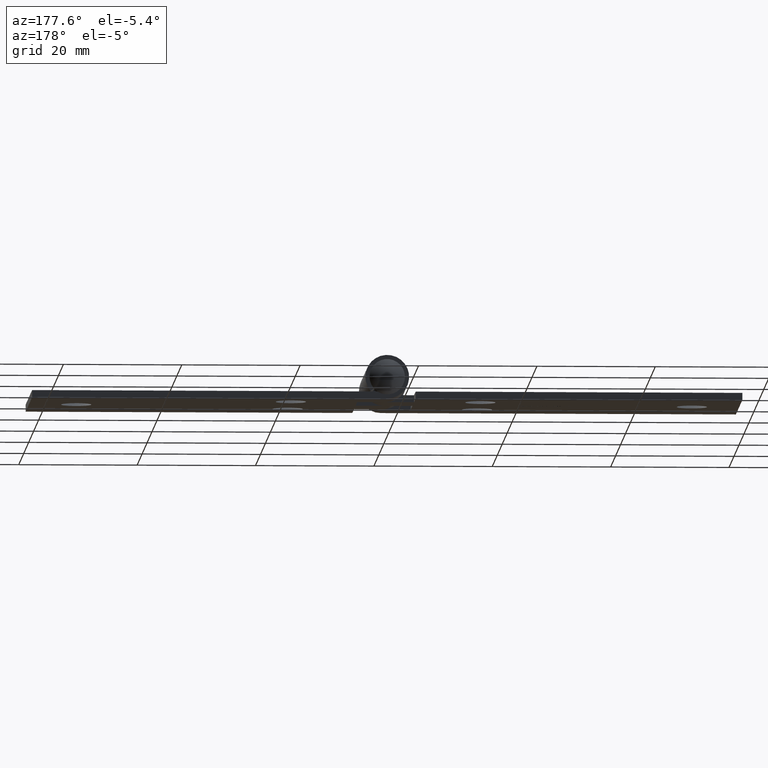
[diagram: clean part render]
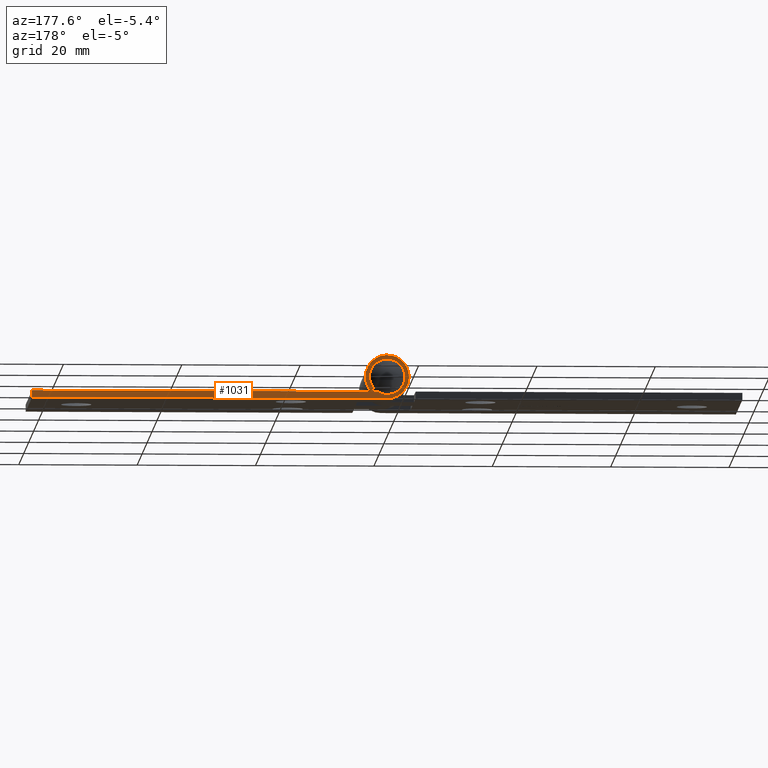
[diagram: same view with one face highlighted and labeled with its STEP entity id]
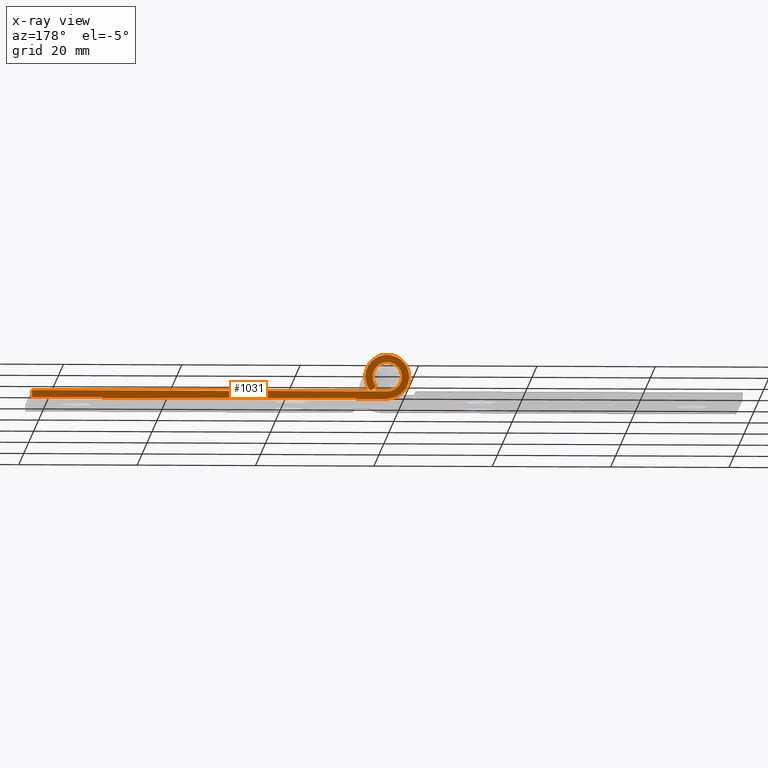
[diagram: x-ray of the same camera — body ghosted, the highlighted face saturated]
A machine part, auxiliary view. The second image highlights one B-rep face of the part: STEP entity #1031.
The next image is the same camera in x-ray: the body ghosted, the highlighted face saturated — about 0% of this face is hidden behind the body in this view.
In plain terms, the highlighted planar face has unit normal (0, 1, 0).
Its self-contained STEP definition (entity closure, byte-faithful):
#105 = CARTESIAN_POINT ( 'NONE',  ( 60.00000000000000000, -13.00000000000000000, 2.508278806333708124E-18 ) ) ;
#269 = LINE ( 'NONE', #3964, #8578 ) ;
#354 = AXIS2_PLACEMENT_3D ( 'NONE', #7075, #2725, #8872 ) ;
#465 = VECTOR ( 'NONE', #4712, 1000.000000000000227 ) ;
#541 = VERTEX_POINT ( 'NONE', #9155 ) ;
#857 = CARTESIAN_POINT ( 'NONE',  ( 60.00000000000000000, -13.00000000000000000, 3.700000000000000178 ) ) ;
#1031 = ADVANCED_FACE ( 'NONE', ( #9221 ), #2685, .T. ) ;
#1388 = EDGE_CURVE ( 'NONE', #6345, #5508, #7810, .T. ) ;
#1530 = ORIENTED_EDGE ( 'NONE', *, *, #6232, .F. ) ;
#1606 = EDGE_CURVE ( 'NONE', #2694, #541, #8870, .T. ) ;
#1745 = DIRECTION ( 'NONE',  ( 0.000000000000000000, 0.000000000000000000, 1.000000000000000000 ) ) ;
#1863 = VERTEX_POINT ( 'NONE', #11282 ) ;
#2300 = EDGE_CURVE ( 'NONE', #5508, #1863, #11444, .T. ) ;
#2327 = DIRECTION ( 'NONE',  ( -0.000000000000000000, -1.000000000000000000, 0.000000000000000000 ) ) ;
#2685 = PLANE ( 'NONE',  #354 ) ;
#2694 = VERTEX_POINT ( 'NONE', #6818 ) ;
#2725 = DIRECTION ( 'NONE',  ( 0.000000000000000000, -1.000000000000000000, 0.000000000000000000 ) ) ;
#2867 = DIRECTION ( 'NONE',  ( -1.000000000000000000, -0.000000000000000000, -0.000000000000000000 ) ) ;
#3149 = ORIENTED_EDGE ( 'NONE', *, *, #1606, .F. ) ;
#3217 = DIRECTION ( 'NONE',  ( 1.000000000000000000, 0.000000000000000000, 0.000000000000000000 ) ) ;
#3964 = CARTESIAN_POINT ( 'NONE',  ( 55.20000000000000284, -13.00000000000000000, 1.199999999999999956 ) ) ;
#4128 = EDGE_CURVE ( 'NONE', #541, #7129, #5729, .T. ) ;
#4309 = ORIENTED_EDGE ( 'NONE', *, *, #1388, .F. ) ;
#4712 = DIRECTION ( 'NONE',  ( -0.7610879913691190879, -0.000000000000000000, -0.6486486486486500169 ) ) ;
#5268 = CARTESIAN_POINT ( 'NONE',  ( 0.000000000000000000, -13.00000000000000000, 0.000000000000000000 ) ) ;
#5311 = CARTESIAN_POINT ( 'NONE',  ( 57.18397443193425289, -13.00000000000000000, 1.300000000000000711 ) ) ;
#5508 = VERTEX_POINT ( 'NONE', #7896 ) ;
#5691 = ORIENTED_EDGE ( 'NONE', *, *, #9243, .F. ) ;
#5729 = LINE ( 'NONE', #9960, #465 ) ;
#6221 = DIRECTION ( 'NONE',  ( 0.000000000000000000, 0.000000000000000000, -1.000000000000000000 ) ) ;
#6232 = EDGE_CURVE ( 'NONE', #7129, #6345, #9895, .T. ) ;
#6345 = VERTEX_POINT ( 'NONE', #105 ) ;
#6368 = EDGE_LOOP ( 'NONE', ( #8192, #4309, #1530, #8891, #3149, #5691 ) ) ;
#6818 = CARTESIAN_POINT ( 'NONE',  ( 60.00000000000000000, -13.00000000000000000, 1.199999999999997957 ) ) ;
#7075 = CARTESIAN_POINT ( 'NONE',  ( 60.00000000000000000, -13.00000000000000000, 3.700000000000000178 ) ) ;
#7129 = VERTEX_POINT ( 'NONE', #5311 ) ;
#7597 = DIRECTION ( 'NONE',  ( 0.000000000000000000, 0.000000000000000000, -1.000000000000000000 ) ) ;
#7810 = LINE ( 'NONE', #8117, #11431 ) ;
#7896 = CARTESIAN_POINT ( 'NONE',  ( 0.000000000000000000, -13.00000000000000000, 0.000000000000000000 ) ) ;
#8117 = CARTESIAN_POINT ( 'NONE',  ( 0.000000000000000000, -13.00000000000000000, 0.000000000000000000 ) ) ;
#8136 = AXIS2_PLACEMENT_3D ( 'NONE', #857, #9625, #6221 ) ;
#8192 = ORIENTED_EDGE ( 'NONE', *, *, #2300, .F. ) ;
#8574 = CARTESIAN_POINT ( 'NONE',  ( 60.00000000000000000, -13.00000000000000000, 3.700000000000000178 ) ) ;
#8578 = VECTOR ( 'NONE', #3217, 1000.000000000000000 ) ;
#8870 = CIRCLE ( 'NONE', #10511, 2.500000000000002220 ) ;
#8872 = DIRECTION ( 'NONE',  ( 0.000000000000000000, -0.000000000000000000, -1.000000000000000000 ) ) ;
#8891 = ORIENTED_EDGE ( 'NONE', *, *, #4128, .F. ) ;
#9155 = CARTESIAN_POINT ( 'NONE',  ( 58.09728002157719118, -13.00000000000000000, 2.078378378378378688 ) ) ;
#9221 = FACE_OUTER_BOUND ( 'NONE', #6368, .T. ) ;
#9243 = EDGE_CURVE ( 'NONE', #1863, #2694, #269, .T. ) ;
#9625 = DIRECTION ( 'NONE',  ( 0.000000000000000000, 1.000000000000000000, -0.000000000000000000 ) ) ;
#9895 = CIRCLE ( 'NONE', #8136, 3.700000000000001066 ) ;
#9960 = CARTESIAN_POINT ( 'NONE',  ( 57.18397443193425289, -13.00000000000000000, 1.299999999999999600 ) ) ;
#10511 = AXIS2_PLACEMENT_3D ( 'NONE', #8574, #2327, #7597 ) ;
#10759 = VECTOR ( 'NONE', #1745, 1000.000000000000000 ) ;
#11282 = CARTESIAN_POINT ( 'NONE',  ( 0.000000000000000000, -13.00000000000000000, 1.199999999999999956 ) ) ;
#11431 = VECTOR ( 'NONE', #2867, 1000.000000000000000 ) ;
#11444 = LINE ( 'NONE', #5268, #10759 ) ;